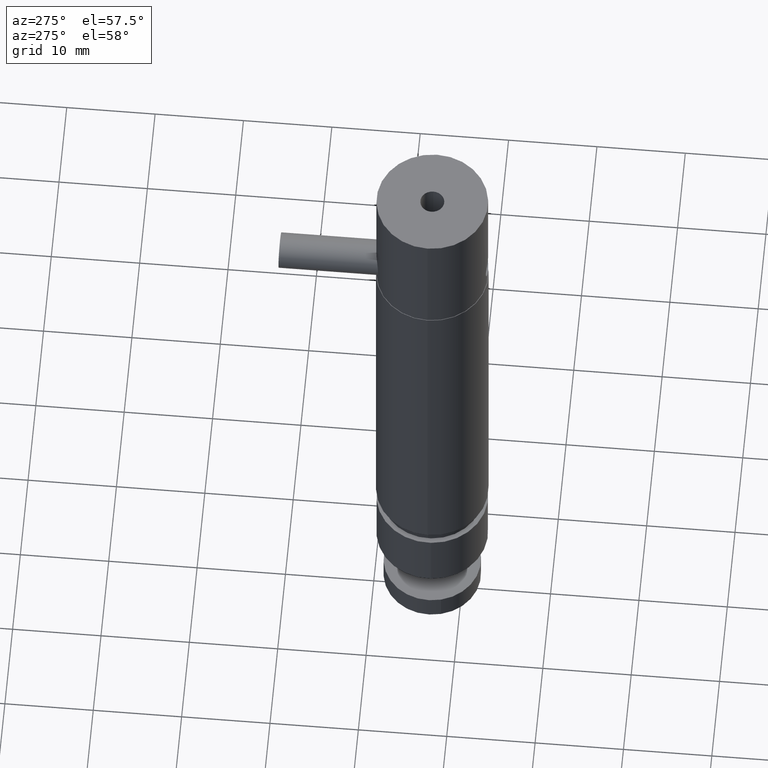
[diagram: clean part render]
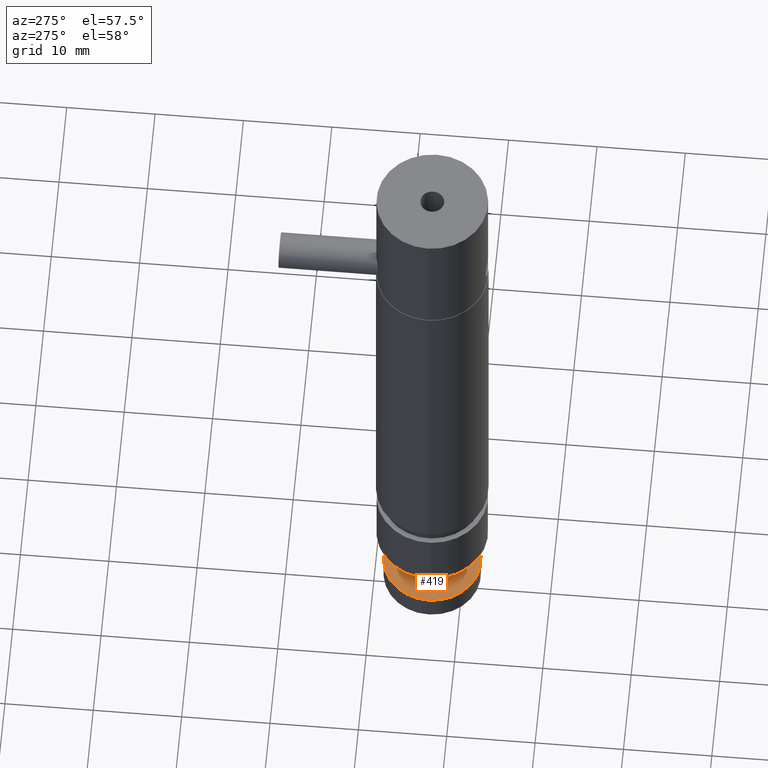
[diagram: same view with one face highlighted and labeled with its STEP entity id]
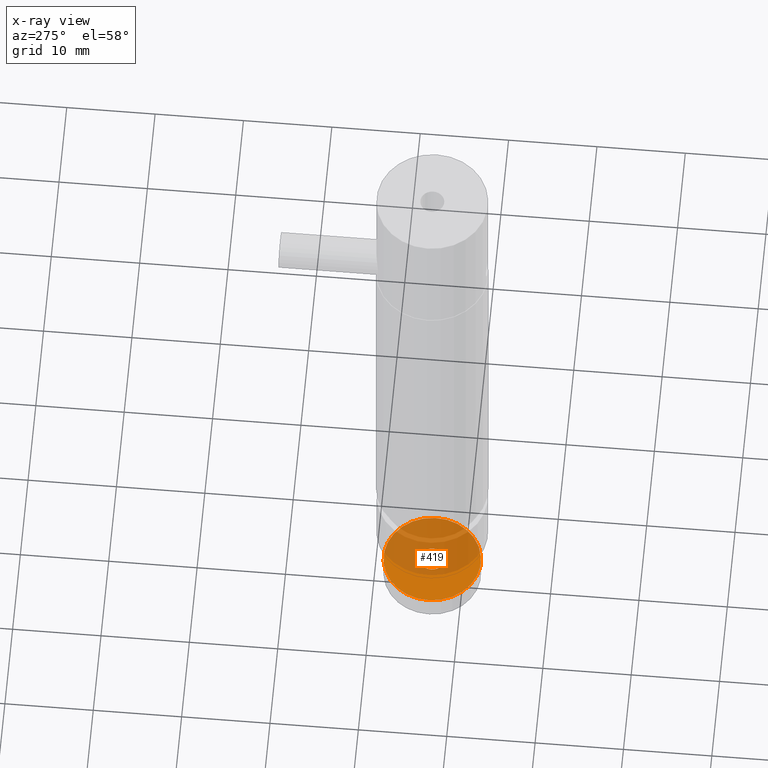
[diagram: x-ray of the same camera — body ghosted, the highlighted face saturated]
A machine part, auxiliary view. The second image highlights one B-rep face of the part: STEP entity #419.
The next image is the same camera in x-ray: the body ghosted, the highlighted face saturated — about 62% of this face is hidden behind the body in this view.
In plain terms, the highlighted planar face has unit normal (0, 0, 1).
Its self-contained STEP definition (entity closure, byte-faithful):
#362 = VERTEX_POINT ( 'NONE', #1895 ) ;
#396 = ORIENTED_EDGE ( 'NONE', *, *, #409, .T. ) ;
#397 = EDGE_LOOP ( 'NONE', ( #398, #402 ) ) ;
#398 = ORIENTED_EDGE ( 'NONE', *, *, #399, .T. ) ;
#399 = EDGE_CURVE ( 'NONE', #400, #401, #1992, .T. ) ;
#400 = VERTEX_POINT ( 'NONE', #2039 ) ;
#401 = VERTEX_POINT ( 'NONE', #2038 ) ;
#402 = ORIENTED_EDGE ( 'NONE', *, *, #403, .T. ) ;
#403 = EDGE_CURVE ( 'NONE', #401, #400, #2036, .T. ) ;
#409 = EDGE_CURVE ( 'NONE', #362, #410, #2077, .T. ) ;
#410 = VERTEX_POINT ( 'NONE', #2068 ) ;
#419 = ADVANCED_FACE ( 'NONE', ( #2051, #2050 ), #2091, .T. ) ;
#420 = EDGE_LOOP ( 'NONE', ( #421, #396 ) ) ;
#421 = ORIENTED_EDGE ( 'NONE', *, *, #422, .T. ) ;
#422 = EDGE_CURVE ( 'NONE', #410, #362, #2086, .T. ) ;
#1895 = CARTESIAN_POINT ( 'NONE',  ( 0.2390839190030724100, -0.2007643852930111900, -3.222814476048128500 ) ) ;
#1989 = DIRECTION ( 'NONE',  ( 0.0000000000000000000, 0.0000000000000000000, -1.000000000000000000 ) ) ;
#1990 = CARTESIAN_POINT ( 'NONE',  ( 0.03018495505829765400, -0.2577627768316084800, -3.222814476048128500 ) ) ;
#1991 = AXIS2_PLACEMENT_3D ( 'NONE', #1990, #1989, #2040 ) ;
#1992 = CIRCLE ( 'NONE', #1991, 0.05511811023622049200 ) ;
#2032 = DIRECTION ( 'NONE',  ( -0.9647333971267780800, -0.2632289354691583200, 0.0000000000000000000 ) ) ;
#2033 = DIRECTION ( 'NONE',  ( 0.0000000000000000000, 0.0000000000000000000, -1.000000000000000000 ) ) ;
#2034 = CARTESIAN_POINT ( 'NONE',  ( 0.03018495505829765400, -0.2577627768316084800, -3.222814476048128500 ) ) ;
#2035 = AXIS2_PLACEMENT_3D ( 'NONE', #2034, #2033, #2032 ) ;
#2036 = CIRCLE ( 'NONE', #2035, 0.05511811023622049200 ) ;
#2038 = CARTESIAN_POINT ( 'NONE',  ( 0.08335923678969489600, -0.2432540953490564500, -3.222814476048128500 ) ) ;
#2039 = CARTESIAN_POINT ( 'NONE',  ( -0.02298932667309958000, -0.2722714583141605500, -3.222814476048128500 ) ) ;
#2040 = DIRECTION ( 'NONE',  ( -0.9647333971267780800, -0.2632289354691583200, 0.0000000000000000000 ) ) ;
#2050 = FACE_BOUND ( 'NONE', #397, .T. ) ;
#2051 = FACE_OUTER_BOUND ( 'NONE', #420, .T. ) ;
#2068 = CARTESIAN_POINT ( 'NONE',  ( -0.1787140088864770900, -0.3147611683702057900, -3.222814476048128500 ) ) ;
#2069 = DIRECTION ( 'NONE',  ( 0.9647333971267780800, 0.2632289354691583200, 0.0000000000000000000 ) ) ;
#2070 = DIRECTION ( 'NONE',  ( 0.0000000000000000000, 0.0000000000000000000, 1.000000000000000000 ) ) ;
#2071 = CARTESIAN_POINT ( 'NONE',  ( 0.03018495505829765400, -0.2577627768316084800, -3.222814476048128500 ) ) ;
#2072 = AXIS2_PLACEMENT_3D ( 'NONE', #2071, #2070, #2069 ) ;
#2077 = CIRCLE ( 'NONE', #2072, 0.2165354330708662300 ) ;
#2082 = DIRECTION ( 'NONE',  ( 0.9647333971267780800, 0.2632289354691583200, 0.0000000000000000000 ) ) ;
#2083 = DIRECTION ( 'NONE',  ( 0.0000000000000000000, 0.0000000000000000000, 1.000000000000000000 ) ) ;
#2084 = CARTESIAN_POINT ( 'NONE',  ( 0.03018495505829765400, -0.2577627768316084800, -3.222814476048128500 ) ) ;
#2085 = AXIS2_PLACEMENT_3D ( 'NONE', #2084, #2083, #2082 ) ;
#2086 = CIRCLE ( 'NONE', #2085, 0.2165354330708662300 ) ;
#2087 = DIRECTION ( 'NONE',  ( 0.9647333971267779700, 0.2632289354691583200, 0.0000000000000000000 ) ) ;
#2088 = DIRECTION ( 'NONE',  ( 0.0000000000000000000, 0.0000000000000000000, 1.000000000000000000 ) ) ;
#2089 = CARTESIAN_POINT ( 'NONE',  ( 0.03018495505829765400, -0.2577627768316084800, -3.222814476048128500 ) ) ;
#2090 = AXIS2_PLACEMENT_3D ( 'NONE', #2089, #2088, #2087 ) ;
#2091 = PLANE ( 'NONE',  #2090 ) ;